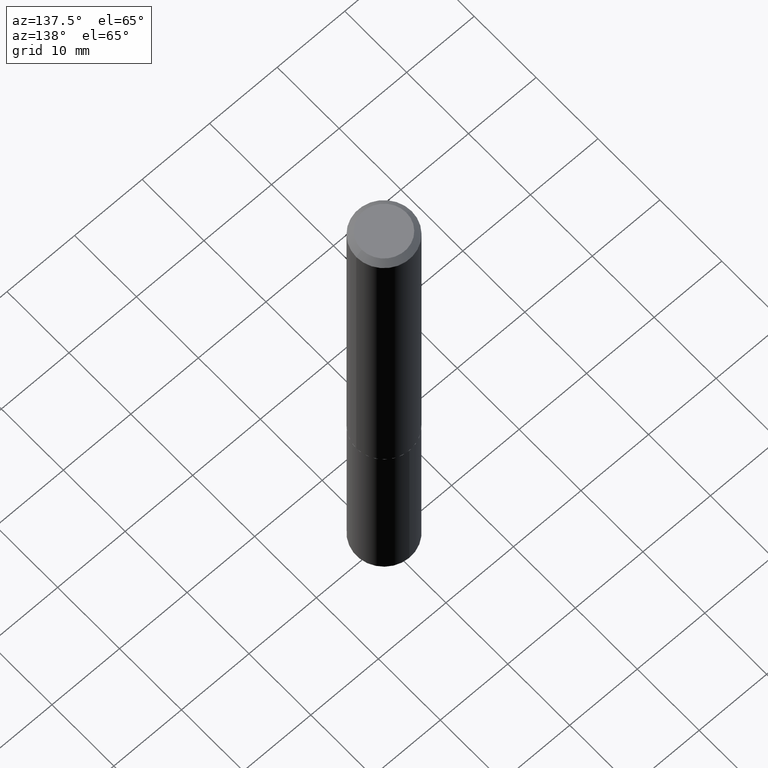
[diagram: clean part render]
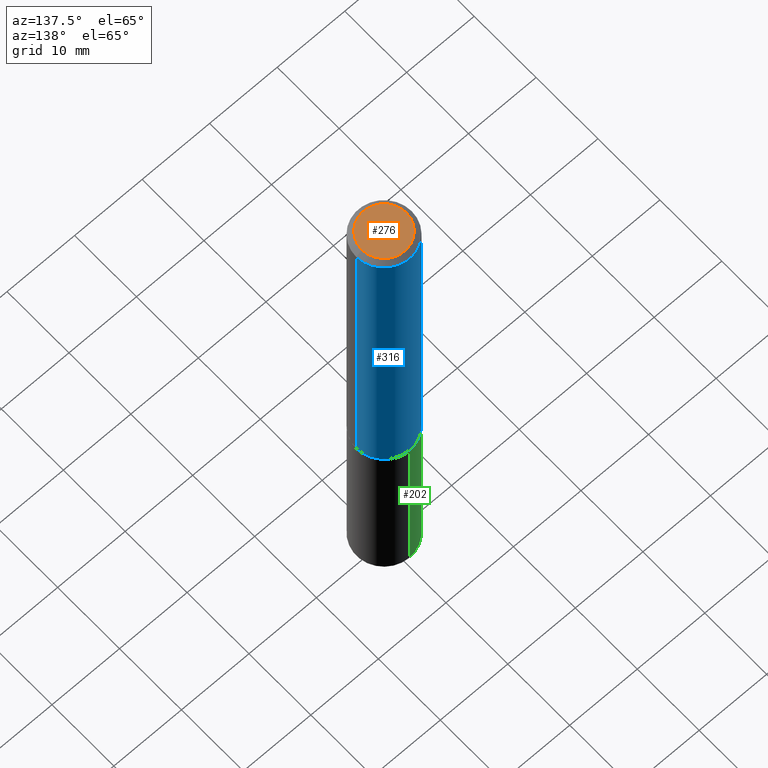
[diagram: same view with three faces highlighted in distinct colors, each labeled with its STEP entity id]
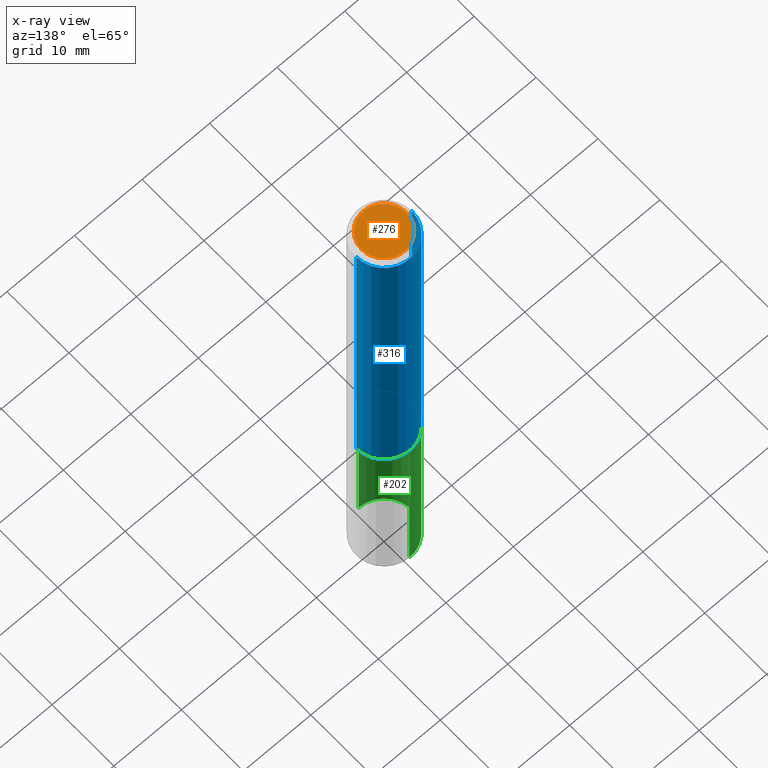
[diagram: x-ray of the same camera — body ghosted, the three highlighted faces saturated]
A machine part, auxiliary view with three faces highlighted in distinct colors.
The next image is the same camera in x-ray (body ghosted, the three faces saturated) — at least one of them is partly hidden behind the body in this view.
Their STEP definitions:

[orange] entity #276 — the highlighted planar face has unit normal (0, -0, -1).
#33 = CARTESIAN_POINT ( 'NONE',  ( -5.839929314523095191E-48, 8.337871319498967861E-34, 2.388061258337300918E-19 ) ) ;
#52 = CARTESIAN_POINT ( 'NONE',  ( -5.839929314523095191E-48, 8.337871319498967861E-34, 2.388061258337300918E-19 ) ) ;
#73 = CIRCLE ( 'NONE', #186, 0.1301499999999999879 ) ;
#100 = VERTEX_POINT ( 'NONE', #310 ) ;
#102 = FACE_OUTER_BOUND ( 'NONE', #383, .T. ) ;
#106 = DIRECTION ( 'NONE',  ( -1.000000000000000000, 6.982962677686265922E-15, -4.876176775795935793E-29 ) ) ;
#110 = EDGE_CURVE ( 'NONE', #245, #100, #73, .T. ) ;
#133 = DIRECTION ( 'NONE',  ( 2.438088387897960049E-29, -3.491481338843145188E-15, -1.000000000000000000 ) ) ;
#134 = CARTESIAN_POINT ( 'NONE',  ( -2.919964657261547595E-48, 4.168935659749483931E-34, 1.194030629168650459E-19 ) ) ;
#149 = EDGE_CURVE ( 'NONE', #100, #245, #375, .T. ) ;
#162 = AXIS2_PLACEMENT_3D ( 'NONE', #52, #294, #353 ) ;
#168 = ORIENTED_EDGE ( 'NONE', *, *, #149, .T. ) ;
#186 = AXIS2_PLACEMENT_3D ( 'NONE', #33, #275, #239 ) ;
#227 = PLANE ( 'NONE',  #293 ) ;
#239 = DIRECTION ( 'NONE',  ( 1.000000000000000000, -6.982962677686266711E-15, 4.876182450887182109E-29 ) ) ;
#245 = VERTEX_POINT ( 'NONE', #261 ) ;
#261 = CARTESIAN_POINT ( 'NONE',  ( -0.1301499999999999879, 9.633869884202906654E-16, 2.388061258271836633E-19 ) ) ;
#275 = DIRECTION ( 'NONE',  ( -2.445468806185136597E-29, 3.491481338843145583E-15, 1.000000000000000000 ) ) ;
#276 = ADVANCED_FACE ( 'NONE', ( #102 ), #227, .F. ) ;
#293 = AXIS2_PLACEMENT_3D ( 'NONE', #134, #133, #106 ) ;
#294 = DIRECTION ( 'NONE',  ( -2.445468806185136597E-29, 3.491481338843145583E-15, 1.000000000000000000 ) ) ;
#310 = CARTESIAN_POINT ( 'NONE',  ( 0.1301499999999999879, -1.054643491544569416E-15, 2.388061258405951654E-19 ) ) ;
#353 = DIRECTION ( 'NONE',  ( 1.000000000000000000, -6.982962677686266711E-15, 4.876182450887182109E-29 ) ) ;
#354 = ORIENTED_EDGE ( 'NONE', *, *, #110, .T. ) ;
#375 = CIRCLE ( 'NONE', #162, 0.1301499999999999879 ) ;
#383 = EDGE_LOOP ( 'NONE', ( #354, #168 ) ) ;

[blue] entity #316 — the highlighted cylindrical surface (partial cylindrical patch) has radius 4.0996 mm, axis along (-0, 0, 1).
#2 = EDGE_LOOP ( 'NONE', ( #226, #380, #129, #104 ) ) ;
#15 = CIRCLE ( 'NONE', #126, 0.1614000000000002100 ) ;
#31 = EDGE_CURVE ( 'NONE', #228, #48, #357, .T. ) ;
#36 = DIRECTION ( 'NONE',  ( 1.000000000000000000, -6.982962677686266711E-15, 0.000000000000000000 ) ) ;
#48 = VERTEX_POINT ( 'NONE', #60 ) ;
#55 = CARTESIAN_POINT ( 'NONE',  ( 0.1613999999999999879, -1.236158968017412234E-15, -0.03125000000000020817 ) ) ;
#58 = FACE_OUTER_BOUND ( 'NONE', #2, .T. ) ;
#59 = AXIS2_PLACEMENT_3D ( 'NONE', #307, #253, #36 ) ;
#60 = CARTESIAN_POINT ( 'NONE',  ( -0.1613999999999999879, -2.356972835045764977E-15, -0.03125000000000020817 ) ) ;
#65 = CARTESIAN_POINT ( 'NONE',  ( -0.1614000000000000989, 1.146815975516802403E-15, -7.939161235671423092E-30 ) ) ;
#74 = EDGE_CURVE ( 'NONE', #174, #48, #384, .T. ) ;
#86 = DIRECTION ( 'NONE',  ( -2.445468806185136877E-29, 3.491481338843145188E-15, 1.000000000000000000 ) ) ;
#104 = ORIENTED_EDGE ( 'NONE', *, *, #127, .F. ) ;
#126 = AXIS2_PLACEMENT_3D ( 'NONE', #350, #327, #345 ) ;
#127 = EDGE_CURVE ( 'NONE', #206, #174, #184, .T. ) ;
#129 = ORIENTED_EDGE ( 'NONE', *, *, #74, .F. ) ;
#174 = VERTEX_POINT ( 'NONE', #55 ) ;
#184 = LINE ( 'NONE', #208, #281 ) ;
#190 = VECTOR ( 'NONE', #362, 39.37007874015748143 ) ;
#206 = VERTEX_POINT ( 'NONE', #264 ) ;
#208 = CARTESIAN_POINT ( 'NONE',  ( 0.1614000000000000989, -1.127050176178563922E-15, 7.870149316134644921E-30 ) ) ;
#216 = DIRECTION ( 'NONE',  ( 1.000000000000000000, -6.982962677686265133E-15, 4.876176775795935793E-29 ) ) ;
#226 = ORIENTED_EDGE ( 'NONE', *, *, #229, .T. ) ;
#228 = VERTEX_POINT ( 'NONE', #289 ) ;
#229 = EDGE_CURVE ( 'NONE', #206, #228, #15, .T. ) ;
#247 = CARTESIAN_POINT ( 'NONE',  ( 0.000000000000000000, 0.000000000000000000, 0.000000000000000000 ) ) ;
#253 = DIRECTION ( 'NONE',  ( -2.445468806185136597E-29, 3.491481338843145583E-15, 1.000000000000000000 ) ) ;
#264 = CARTESIAN_POINT ( 'NONE',  ( 0.1614000000000002100, -8.025519005464851751E-15, -1.975800000000000001 ) ) ;
#277 = CYLINDRICAL_SURFACE ( 'NONE', #330, 0.1614000000000000989 ) ;
#281 = VECTOR ( 'NONE', #86, 39.37007874015748143 ) ;
#289 = CARTESIAN_POINT ( 'NONE',  ( -0.1614000000000002100, -5.751652853769483256E-15, -1.975800000000000001 ) ) ;
#307 = CARTESIAN_POINT ( 'NONE',  ( 7.642090019328602662E-31, -1.091087918388490267E-16, -0.03125000000000020817 ) ) ;
#308 = DIRECTION ( 'NONE',  ( -2.445468806185136597E-29, 3.491481338843145583E-15, 1.000000000000000000 ) ) ;
#316 = ADVANCED_FACE ( 'NONE', ( #58 ), #277, .T. ) ;
#327 = DIRECTION ( 'NONE',  ( -2.445468806185136597E-29, 3.491481338843145583E-15, 1.000000000000000000 ) ) ;
#330 = AXIS2_PLACEMENT_3D ( 'NONE', #247, #308, #216 ) ;
#345 = DIRECTION ( 'NONE',  ( 1.000000000000000000, -6.982962677686268288E-15, 0.000000000000000000 ) ) ;
#350 = CARTESIAN_POINT ( 'NONE',  ( 4.831757267260592925E-29, -6.898468829286286448E-15, -1.975800000000000001 ) ) ;
#357 = LINE ( 'NONE', #65, #190 ) ;
#362 = DIRECTION ( 'NONE',  ( -2.445468806185136877E-29, 3.491481338843145188E-15, 1.000000000000000000 ) ) ;
#380 = ORIENTED_EDGE ( 'NONE', *, *, #31, .T. ) ;
#384 = CIRCLE ( 'NONE', #59, 0.1613999999999999879 ) ;

[green] entity #202 — the highlighted cylindrical surface (partial cylindrical patch) has radius 4.0996 mm, axis along (-0, 0, 1).
#21 = VECTOR ( 'NONE', #111, 39.37007874015748143 ) ;
#22 = VERTEX_POINT ( 'NONE', #332 ) ;
#23 = CARTESIAN_POINT ( 'NONE',  ( -1.127050176178487994E-15, -0.1614000000000106461, -3.066953000341617663 ) ) ;
#30 = VERTEX_POINT ( 'NONE', #144 ) ;
#75 = ORIENTED_EDGE ( 'NONE', *, *, #340, .F. ) ;
#93 = LINE ( 'NONE', #183, #108 ) ;
#98 = EDGE_CURVE ( 'NONE', #199, #30, #114, .T. ) ;
#108 = VECTOR ( 'NONE', #274, 39.37007874015748143 ) ;
#111 = DIRECTION ( 'NONE',  ( -2.445414552692694796E-29, 3.491559032932239035E-15, 1.000000000000000000 ) ) ;
#114 = LINE ( 'NONE', #331, #21 ) ;
#130 = CARTESIAN_POINT ( 'NONE',  ( 1.146815975516876556E-15, 0.1613999999999930768, -1.976300000000000390 ) ) ;
#131 = VERTEX_POINT ( 'NONE', #130 ) ;
#144 = CARTESIAN_POINT ( 'NONE',  ( -1.127050176178515013E-15, -0.1614000000000068713, -1.976299999999999280 ) ) ;
#147 = DIRECTION ( 'NONE',  ( -6.982962677686266711E-15, -1.000000000000000000, 3.385189583227092077E-15 ) ) ;
#151 = AXIS2_PLACEMENT_3D ( 'NONE', #358, #361, #329 ) ;
#165 = DIRECTION ( 'NONE',  ( -2.445414552692694796E-29, 3.491559032932239035E-15, 1.000000000000000000 ) ) ;
#166 = ORIENTED_EDGE ( 'NONE', *, *, #98, .T. ) ;
#175 = AXIS2_PLACEMENT_3D ( 'NONE', #319, #165, #320 ) ;
#183 = CARTESIAN_POINT ( 'NONE',  ( 1.146815975516849537E-15, 0.1613999999999930768, -1.976300000000000390 ) ) ;
#192 = ORIENTED_EDGE ( 'NONE', *, *, #385, .F. ) ;
#194 = FACE_OUTER_BOUND ( 'NONE', #346, .T. ) ;
#199 = VERTEX_POINT ( 'NONE', #23 ) ;
#201 = CIRCLE ( 'NONE', #349, 0.1613999999999999879 ) ;
#202 = ADVANCED_FACE ( 'NONE', ( #194 ), #374, .T. ) ;
#211 = CARTESIAN_POINT ( 'NONE',  ( 4.832980001663685166E-29, -6.900214569955707952E-15, -1.976299999999999946 ) ) ;
#251 = DIRECTION ( 'NONE',  ( -2.445414552692694796E-29, 3.491559032932239035E-15, 1.000000000000000000 ) ) ;
#274 = DIRECTION ( 'NONE',  ( -2.445414552692694796E-29, 3.491559032932239035E-15, 1.000000000000000000 ) ) ;
#280 = CIRCLE ( 'NONE', #151, 0.1613999999999999879 ) ;
#300 = EDGE_CURVE ( 'NONE', #22, #199, #280, .T. ) ;
#319 = CARTESIAN_POINT ( 'NONE',  ( 4.832980001663685166E-29, -6.900214569955707952E-15, -1.976299999999999946 ) ) ;
#320 = DIRECTION ( 'NONE',  ( -6.982962677686266711E-15, -1.000000000000000000, 3.385189583227092077E-15 ) ) ;
#321 = ORIENTED_EDGE ( 'NONE', *, *, #300, .T. ) ;
#329 = DIRECTION ( 'NONE',  ( -6.982962677686266711E-15, -1.000000000000000000, 3.385189583227092077E-15 ) ) ;
#331 = CARTESIAN_POINT ( 'NONE',  ( -1.127050176178515013E-15, -0.1614000000000068713, -1.976299999999999280 ) ) ;
#332 = CARTESIAN_POINT ( 'NONE',  ( 1.146815975516876162E-15, 0.1613999999999892188, -3.066953000341618552 ) ) ;
#340 = EDGE_CURVE ( 'NONE', #131, #30, #201, .T. ) ;
#346 = EDGE_LOOP ( 'NONE', ( #192, #321, #166, #75 ) ) ;
#349 = AXIS2_PLACEMENT_3D ( 'NONE', #211, #251, #147 ) ;
#358 = CARTESIAN_POINT ( 'NONE',  ( 7.500078720637030197E-29, -1.070829390509313409E-14, -3.066953000341618107 ) ) ;
#361 = DIRECTION ( 'NONE',  ( -2.445414552692694796E-29, 3.491559032932239035E-15, 1.000000000000000000 ) ) ;
#374 = CYLINDRICAL_SURFACE ( 'NONE', #175, 0.1613999999999999879 ) ;
#385 = EDGE_CURVE ( 'NONE', #22, #131, #93, .T. ) ;